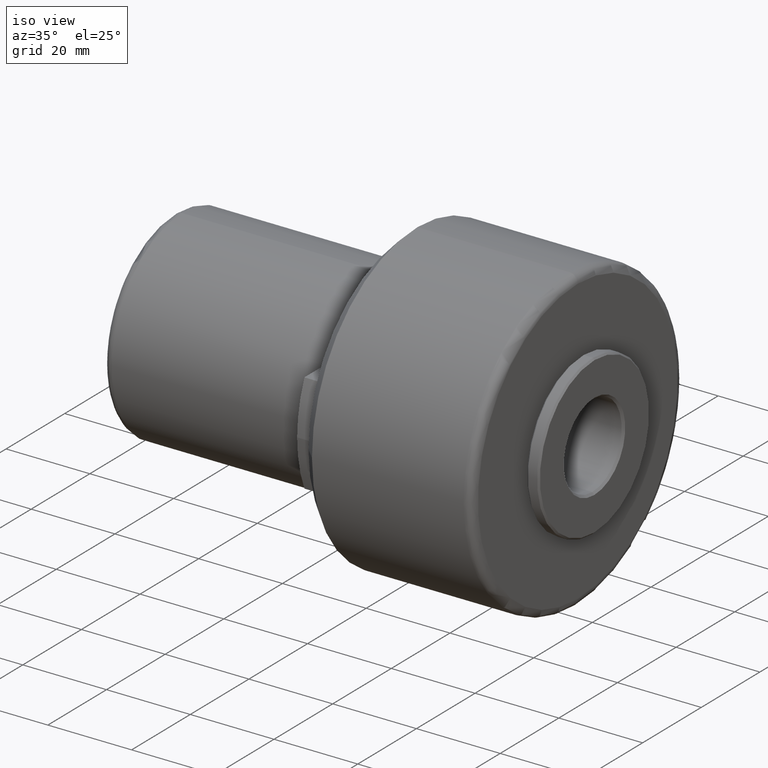
[diagram: clean part render]
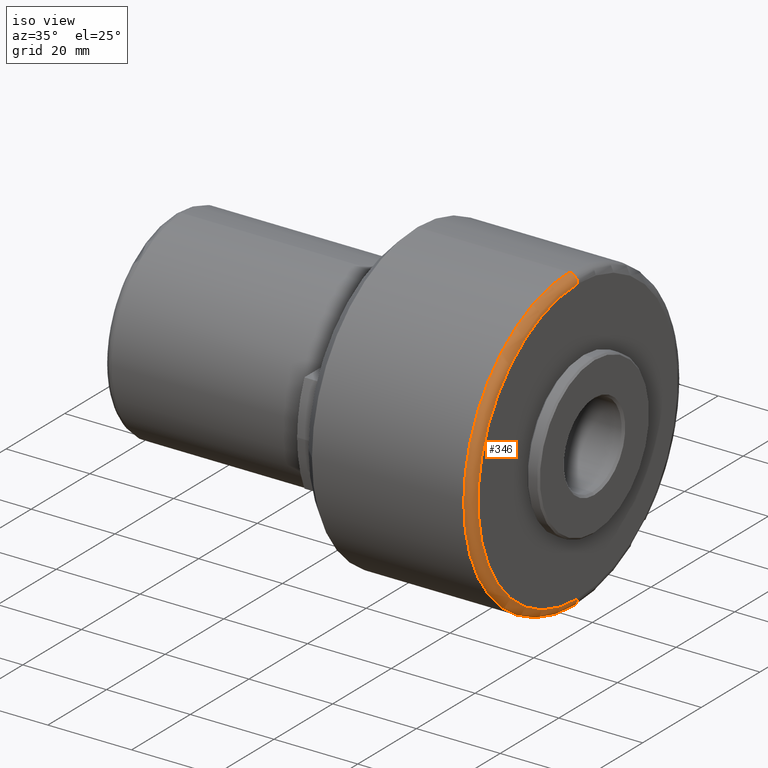
[diagram: same view with one face highlighted and labeled with its STEP entity id]
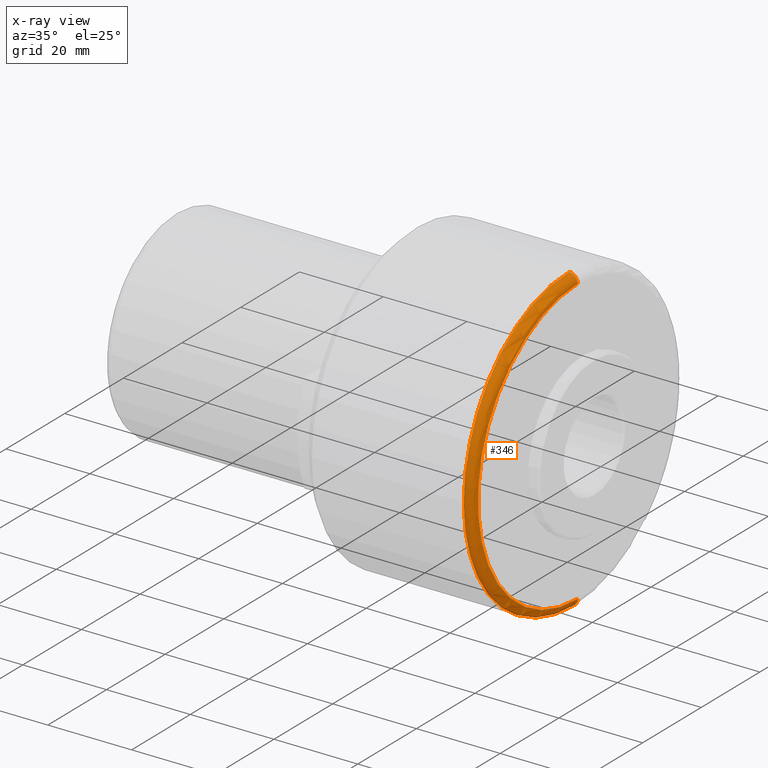
[diagram: x-ray of the same camera — body ghosted, the highlighted face saturated]
A machine part, iso view. The second image highlights one B-rep face of the part: STEP entity #346.
The next image is the same camera in x-ray: the body ghosted, the highlighted face saturated — about 0% of this face is hidden behind the body in this view.
In plain terms, the highlighted toroidal blend (fillet) surface has major radius 34 mm and minor (blend) radius 2 mm.
Its self-contained STEP definition (entity closure, byte-faithful):
#54 = VERTEX_POINT ( 'NONE', #107 ) ;
#64 = ORIENTED_EDGE ( 'NONE', *, *, #1203, .T. ) ;
#107 = CARTESIAN_POINT ( 'NONE',  ( 96.50000000000000000, 0.0000000000000000000, 34.00000000000000700 ) ) ;
#117 = DIRECTION ( 'NONE',  ( 0.0000000000000000000, -1.000000000000000000, 0.0000000000000000000 ) ) ;
#169 = DIRECTION ( 'NONE',  ( -1.000000000000000000, 0.0000000000000000000, 0.0000000000000000000 ) ) ;
#238 = DIRECTION ( 'NONE',  ( 0.0000000000000000000, 1.000000000000000000, 1.224646799147353200E-016 ) ) ;
#263 = CIRCLE ( 'NONE', #638, 2.000000000000001800 ) ;
#332 = EDGE_CURVE ( 'NONE', #1323, #1303, #714, .T. ) ;
#335 = CARTESIAN_POINT ( 'NONE',  ( 94.50000000000000000, 4.408728476930472400E-015, -36.00000000000001400 ) ) ;
#346 = ADVANCED_FACE ( 'NONE', ( #1288 ), #1002, .T. ) ;
#398 = AXIS2_PLACEMENT_3D ( 'NONE', #848, #238, #919 ) ;
#474 = DIRECTION ( 'NONE',  ( 1.000000000000000000, -0.0000000000000000000, -0.0000000000000000000 ) ) ;
#492 = EDGE_LOOP ( 'NONE', ( #928, #820, #64, #1140 ) ) ;
#573 = VERTEX_POINT ( 'NONE', #984 ) ;
#629 = EDGE_CURVE ( 'NONE', #54, #1323, #1335, .T. ) ;
#638 = AXIS2_PLACEMENT_3D ( 'NONE', #764, #117, #874 ) ;
#714 = CIRCLE ( 'NONE', #398, 2.000000000000001800 ) ;
#720 = DIRECTION ( 'NONE',  ( 0.0000000000000000000, 0.0000000000000000000, 1.000000000000000000 ) ) ;
#748 = EDGE_CURVE ( 'NONE', #1303, #573, #904, .T. ) ;
#764 = CARTESIAN_POINT ( 'NONE',  ( 94.50000000000000000, 0.0000000000000000000, 34.00000000000000700 ) ) ;
#815 = CARTESIAN_POINT ( 'NONE',  ( 94.50000000000000000, 0.0000000000000000000, 0.0000000000000000000 ) ) ;
#820 = ORIENTED_EDGE ( 'NONE', *, *, #629, .F. ) ;
#848 = CARTESIAN_POINT ( 'NONE',  ( 94.50000000000000000, 4.163799117101001300E-015, -34.00000000000000700 ) ) ;
#874 = DIRECTION ( 'NONE',  ( 0.0000000000000000000, 0.0000000000000000000, -1.000000000000000000 ) ) ;
#904 = CIRCLE ( 'NONE', #1220, 36.00000000000001400 ) ;
#919 = DIRECTION ( 'NONE',  ( 0.0000000000000000000, -1.224646799147353500E-016, 1.000000000000000000 ) ) ;
#927 = DIRECTION ( 'NONE',  ( 0.0000000000000000000, 0.0000000000000000000, 1.000000000000000000 ) ) ;
#928 = ORIENTED_EDGE ( 'NONE', *, *, #332, .F. ) ;
#929 = DIRECTION ( 'NONE',  ( -1.000000000000000000, 0.0000000000000000000, 0.0000000000000000000 ) ) ;
#971 = AXIS2_PLACEMENT_3D ( 'NONE', #1117, #474, #1223 ) ;
#984 = CARTESIAN_POINT ( 'NONE',  ( 94.50000000000000000, 0.0000000000000000000, 36.00000000000001400 ) ) ;
#1002 = TOROIDAL_SURFACE ( 'NONE', #1182, 34.00000000000000700, 2.000000000000000000 ) ;
#1102 = CARTESIAN_POINT ( 'NONE',  ( 96.50000000000000000, 4.286263797015737300E-015, -34.00000000000000700 ) ) ;
#1117 = CARTESIAN_POINT ( 'NONE',  ( 96.50000000000000000, 0.0000000000000000000, 0.0000000000000000000 ) ) ;
#1140 = ORIENTED_EDGE ( 'NONE', *, *, #748, .F. ) ;
#1182 = AXIS2_PLACEMENT_3D ( 'NONE', #1244, #929, #720 ) ;
#1203 = EDGE_CURVE ( 'NONE', #54, #573, #263, .T. ) ;
#1220 = AXIS2_PLACEMENT_3D ( 'NONE', #815, #169, #927 ) ;
#1223 = DIRECTION ( 'NONE',  ( 0.0000000000000000000, 0.0000000000000000000, 1.000000000000000000 ) ) ;
#1244 = CARTESIAN_POINT ( 'NONE',  ( 94.50000000000000000, 0.0000000000000000000, 0.0000000000000000000 ) ) ;
#1288 = FACE_OUTER_BOUND ( 'NONE', #492, .T. ) ;
#1303 = VERTEX_POINT ( 'NONE', #335 ) ;
#1323 = VERTEX_POINT ( 'NONE', #1102 ) ;
#1335 = CIRCLE ( 'NONE', #971, 34.00000000000000700 ) ;